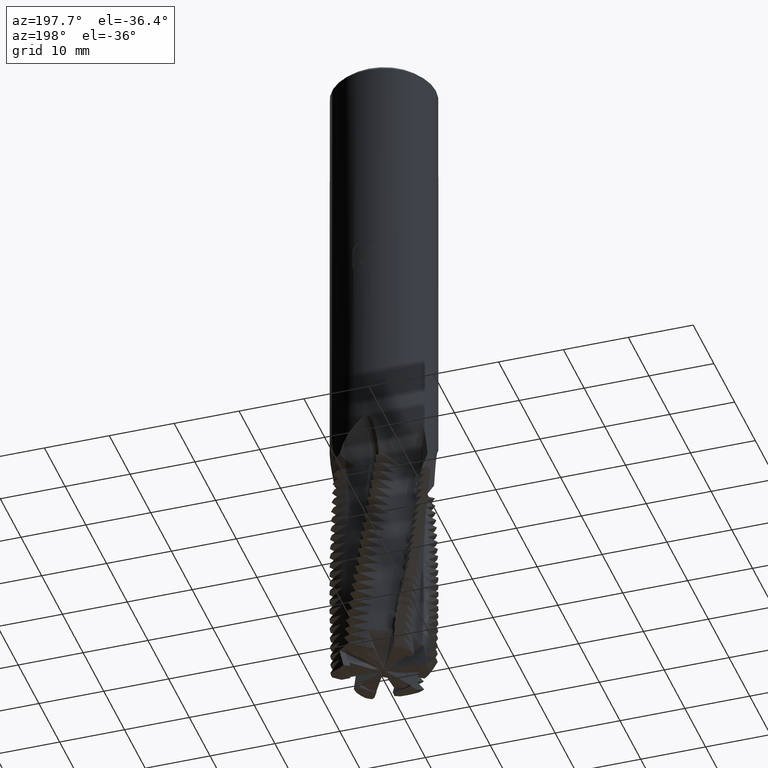
[diagram: clean part render]
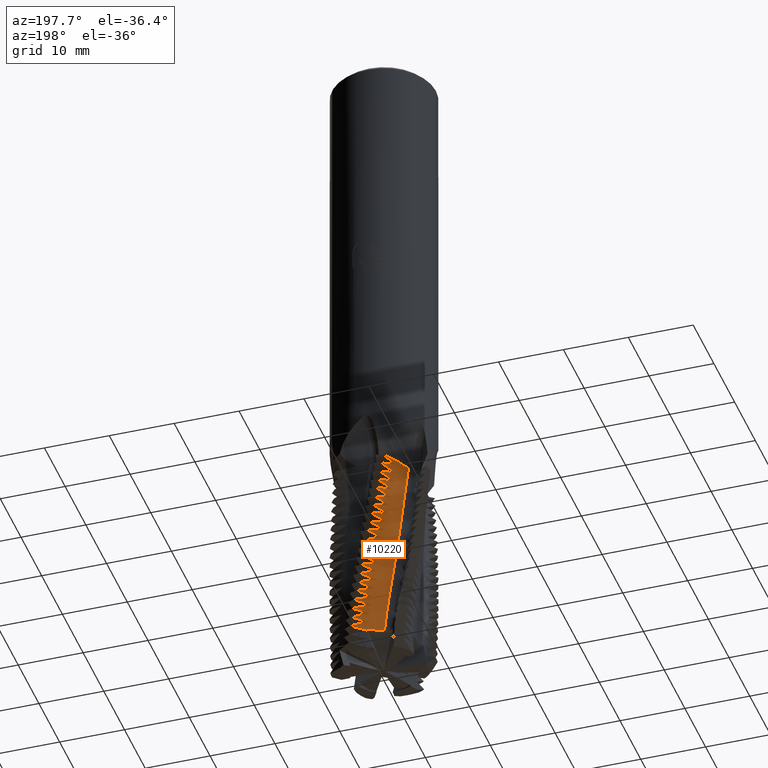
[diagram: same view with one face highlighted and labeled with its STEP entity id]
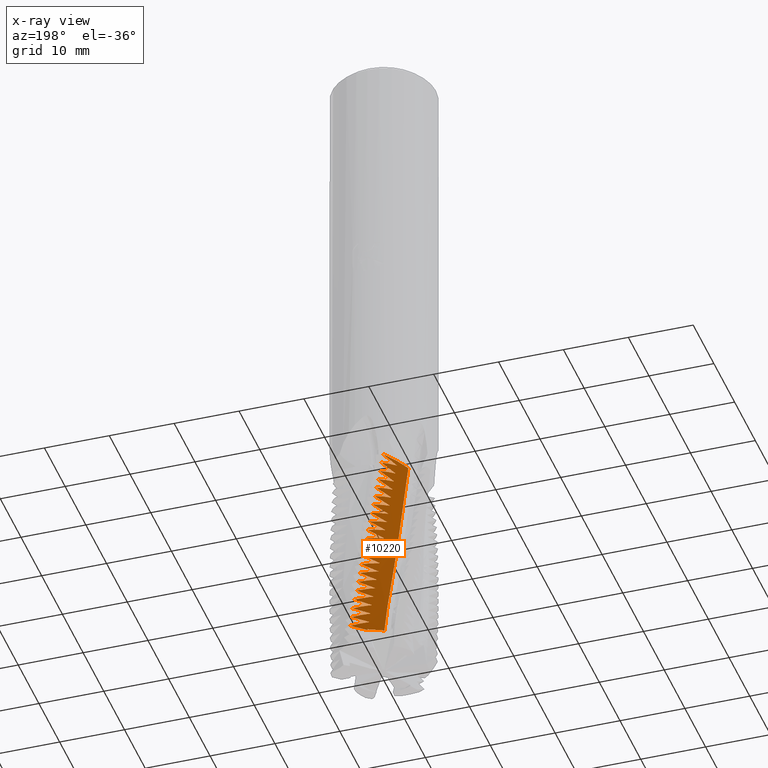
[diagram: x-ray of the same camera — body ghosted, the highlighted face saturated]
A machine part, auxiliary view. The second image highlights one B-rep face of the part: STEP entity #10220.
The next image is the same camera in x-ray: the body ghosted, the highlighted face saturated — about 0% of this face is hidden behind the body in this view.
In plain terms, the highlighted face is a freeform B-spline surface patch.
Its self-contained STEP definition (entity closure, byte-faithful):
#3572=EDGE_CURVE('',#6638,#7048,#10578,.T.);
#3602=EDGE_CURVE('',#5510,#4402,#10611,.T.);
#3728=EDGE_CURVE('',#6560,#4750,#10748,.T.);
#3804=EDGE_CURVE('',#6286,#10432,#10833,.T.);
#3946=VERTEX_POINT('',#10987);
#3958=EDGE_CURVE('',#5080,#10420,#11000,.T.);
#3962=EDGE_CURVE('',#9750,#10074,#11004,.T.);
#4004=EDGE_CURVE('',#7796,#5340,#11047,.T.);
#4064=EDGE_CURVE('',#6792,#9750,#11108,.T.);
#4108=VERTEX_POINT('',#11157);
#4112=EDGE_CURVE('',#4662,#7928,#11162,.T.);
#4120=EDGE_CURVE('',#7064,#10130,#11170,.T.);
#4140=VERTEX_POINT('',#11191);
#4176=VERTEX_POINT('',#11231);
#4188=VERTEX_POINT('',#11245);
#4224=VERTEX_POINT('',#11282);
#4246=VERTEX_POINT('',#11306);
#4322=EDGE_CURVE('',#10122,#9068,#11389,.T.);
#4402=VERTEX_POINT('',#11478);
#4558=EDGE_CURVE('',#5340,#4662,#11650,.T.);
#4658=EDGE_CURVE('',#7964,#4188,#11760,.T.);
#4662=VERTEX_POINT('',#11764);
#4750=VERTEX_POINT('',#11858);
#4760=VERTEX_POINT('',#11869);
#4850=VERTEX_POINT('',#11965);
#4854=EDGE_CURVE('',#6228,#8076,#11969,.T.);
#5054=EDGE_CURVE('',#4760,#7964,#12192,.T.);
#5062=VERTEX_POINT('',#12200);
#5080=VERTEX_POINT('',#12220);
#5138=VERTEX_POINT('',#12281);
#5226=EDGE_CURVE('',#10366,#5080,#12379,.T.);
#5292=VERTEX_POINT('',#12449);
#5310=EDGE_CURVE('',#8076,#6792,#12467,.T.);
#5340=VERTEX_POINT('',#12499);
#5396=EDGE_CURVE('',#4188,#9870,#12563,.T.);
#5510=VERTEX_POINT('',#12683);
#5612=EDGE_CURVE('',#6252,#4760,#12792,.T.);
#5626=VERTEX_POINT('',#12806);
#5632=EDGE_CURVE('',#10432,#6560,#12813,.T.);
#5652=EDGE_CURVE('',#4402,#5062,#12833,.T.);
#5678=EDGE_CURVE('',#10060,#6656,#12861,.T.);
#5686=EDGE_CURVE('',#6336,#10122,#12869,.T.);
#5698=EDGE_CURVE('',#9766,#6252,#12881,.T.);
#5762=EDGE_CURVE('',#8740,#4108,#12949,.T.);
#5902=EDGE_CURVE('',#10074,#7108,#13100,.T.);
#5996=EDGE_CURVE('',#6656,#3946,#13203,.T.);
#6100=VERTEX_POINT('',#13314);
#6142=EDGE_CURVE('',#10420,#4224,#13358,.T.);
#6228=VERTEX_POINT('',#13450);
#6252=VERTEX_POINT('',#13474);
#6286=VERTEX_POINT('',#13513);
#6290=EDGE_CURVE('',#9756,#5626,#13517,.T.);
#6292=EDGE_CURVE('',#4108,#9346,#13519,.T.);
#6336=VERTEX_POINT('',#13566);
#6384=VERTEX_POINT('',#13619);
#6414=EDGE_CURVE('',#9346,#9766,#13651,.T.);
#6434=VERTEX_POINT('',#13674);
#6476=VERTEX_POINT('',#13717);
#6496=VERTEX_POINT('',#13739);
#6516=EDGE_CURVE('',#8780,#6476,#13760,.T.);
#6558=EDGE_CURVE('',#9214,#9756,#13806,.T.);
#6560=VERTEX_POINT('',#13808);
#6638=VERTEX_POINT('',#13891);
#6652=EDGE_CURVE('',#5138,#10060,#13907,.T.);
#6656=VERTEX_POINT('',#13912);
#6682=EDGE_CURVE('',#9068,#8740,#13940,.T.);
#6688=VERTEX_POINT('',#13947);
#6758=EDGE_CURVE('',#5062,#6688,#14020,.T.);
#6792=VERTEX_POINT('',#14054);
#6880=EDGE_CURVE('',#4246,#9792,#14150,.T.);
#7022=EDGE_CURVE('',#4176,#10366,#14304,.T.);
#7048=VERTEX_POINT('',#14334);
#7064=VERTEX_POINT('',#14351);
#7108=VERTEX_POINT('',#14395);
#7136=VERTEX_POINT('',#14426);
#7138=EDGE_CURVE('',#6688,#5292,#14428,.T.);
#7226=VERTEX_POINT('',#14525);
#7358=EDGE_CURVE('',#5510,#7136,#14669,.T.);
#7532=EDGE_CURVE('',#6100,#10326,#14864,.T.);
#7574=EDGE_CURVE('',#9870,#6286,#14912,.T.);
#7640=EDGE_CURVE('',#4850,#6638,#14982,.T.);
#7656=EDGE_CURVE('',#7732,#9214,#14999,.T.);
#7732=VERTEX_POINT('',#15081);
#7796=VERTEX_POINT('',#15151);
#7928=VERTEX_POINT('',#15294);
#7932=EDGE_CURVE('',#7990,#6228,#15298,.T.);
#7934=EDGE_CURVE('',#4140,#7226,#15300,.T.);
#7940=EDGE_CURVE('',#6434,#5138,#15307,.T.);
#7942=EDGE_CURVE('',#10004,#4850,#15309,.T.);
#7964=VERTEX_POINT('',#15334);
#7990=VERTEX_POINT('',#15360);
#8056=EDGE_CURVE('',#6496,#4176,#15434,.T.);
#8076=VERTEX_POINT('',#15455);
#8114=EDGE_CURVE('',#8938,#6434,#15496,.T.);
#8252=EDGE_CURVE('',#7048,#6496,#15648,.T.);
#8270=EDGE_CURVE('',#7928,#7732,#15670,.T.);
#8512=EDGE_CURVE('',#5292,#8780,#15935,.T.);
#8728=EDGE_CURVE('',#10130,#8938,#16168,.T.);
#8734=EDGE_CURVE('',#6476,#10004,#16175,.T.);
#8740=VERTEX_POINT('',#16181);
#8780=VERTEX_POINT('',#16222);
#8844=EDGE_CURVE('',#3946,#6100,#16289,.T.);
#8938=VERTEX_POINT('',#16392);
#9068=VERTEX_POINT('',#16537);
#9214=VERTEX_POINT('',#16700);
#9346=VERTEX_POINT('',#16842);
#9432=EDGE_CURVE('',#10326,#7990,#16937,.T.);
#9460=EDGE_CURVE('',#5626,#4140,#16969,.T.);
#9642=EDGE_CURVE('',#9792,#6336,#17167,.T.);
#9750=VERTEX_POINT('',#17286);
#9756=VERTEX_POINT('',#17292);
#9766=VERTEX_POINT('',#17302);
#9792=VERTEX_POINT('',#17331);
#9870=VERTEX_POINT('',#17416);
#9918=EDGE_CURVE('',#7136,#7226,#17469,.T.);
#10000=EDGE_CURVE('',#10204,#6384,#17558,.T.);
#10004=VERTEX_POINT('',#17563);
#10060=VERTEX_POINT('',#17627);
#10074=VERTEX_POINT('',#17643);
#10122=VERTEX_POINT('',#17696);
#10130=VERTEX_POINT('',#17705);
#10148=EDGE_CURVE('',#4750,#7064,#17723,.T.);
#10158=EDGE_CURVE('',#7108,#7796,#17733,.T.);
#10166=EDGE_CURVE('',#6384,#4246,#17742,.T.);
#10204=VERTEX_POINT('',#17783);
#10214=EDGE_CURVE('',#4224,#10204,#17794,.T.);
#10220=ADVANCED_FACE('',(#17800),#17801,.F.);
#10326=VERTEX_POINT('',#17916);
#10366=VERTEX_POINT('',#17957);
#10420=VERTEX_POINT('',#18015);
#10432=VERTEX_POINT('',#18028);
#10578=B_SPLINE_CURVE_WITH_KNOTS('',3,(#18297,#18298,#18299,#18300,#18301,#18302),.UNSPECIFIED.,.F.,.F.,(4,2,4),(-5.61705254509425,-2.84735436189056,-0.0),.UNSPECIFIED.);
#10611=B_SPLINE_CURVE_WITH_KNOTS('',3,(#18458,#18459,#18460,#18461,#18462,#18463),.UNSPECIFIED.,.F.,.F.,(4,2,4),(-5.3068351961795,-2.64230729135361,-0.0),.UNSPECIFIED.);
#10748=B_SPLINE_CURVE_WITH_KNOTS('',3,(#19052,#19053,#19054,#19055,#19056,#19057),.UNSPECIFIED.,.F.,.F.,(4,2,4),(-5.62560303646634,-2.85306415524994,-0.0),.UNSPECIFIED.);
#10833=B_SPLINE_CURVE_WITH_KNOTS('',3,(#19461,#19462,#19463,#19464,#19465,#19466),.UNSPECIFIED.,.F.,.F.,(4,2,4),(-5.29224975241658,-2.63611369716184,-0.0),.UNSPECIFIED.);
#10987=CARTESIAN_POINT('',(6.2931347719032E-012,6.93667071871941,-94.6964658122784));
#11000=B_SPLINE_CURVE_WITH_KNOTS('',3,(#20113,#20114,#20115,#20116,#20117,#20118),.UNSPECIFIED.,.F.,.F.,(4,2,4),(-5.29919659123654,-2.63980155363889,-0.0),.UNSPECIFIED.);
#11004=B_SPLINE_CURVE_WITH_KNOTS('',3,(#20125,#20126,#20127,#20128,#20129,#20130),.UNSPECIFIED.,.F.,.F.,(4,2,4),(-5.62842690117937,-2.8504616806615,-0.0),.UNSPECIFIED.);
#11047=B_SPLINE_CURVE_WITH_KNOTS('',3,(#20212,#20213,#20214,#20215,#20216,#20217),.UNSPECIFIED.,.F.,.F.,(4,2,4),(-5.30899180641746,-2.64685509436616,-0.0),.UNSPECIFIED.);
#11108=B_SPLINE_CURVE_WITH_KNOTS('',3,(#20347,#20348,#20349,#20350,#20351,#20352),.UNSPECIFIED.,.F.,.F.,(4,2,4),(-5.27796931122873,-2.63493816784428,-0.0),.UNSPECIFIED.);
#11157=CARTESIAN_POINT('',(0.500448520905058,7.98433161121188,-87.7500000000235));
#11162=B_SPLINE_CURVE_WITH_KNOTS('',3,(#20581,#20582,#20583,#20584,#20585,#20586),.UNSPECIFIED.,.F.,.F.,(4,2,4),(-5.59463923909086,-2.8299940062237,-0.0),.UNSPECIFIED.);
#11170=B_SPLINE_CURVE_WITH_KNOTS('',3,(#20596,#20597,#20598,#20599,#20600,#20601),.UNSPECIFIED.,.F.,.F.,(4,2,4),(-5.28481160809971,-2.63325788762491,-0.0),.UNSPECIFIED.);
#11191=CARTESIAN_POINT('',(-1.81806718116305,5.47136106983326,-101.739488676859));
#11231=CARTESIAN_POINT('',(-0.777464885794631,7.96213214857404,-80.25));
#11245=CARTESIAN_POINT('',(-1.39910663453559,6.40830999861701,-90.0));
#11282=CARTESIAN_POINT('',(-0.256729885973499,7.99587954922084,-83.25));
#11306=CARTESIAN_POINT('',(-1.99867690356361,6.24733759679575,-85.5));
#11389=B_SPLINE_CURVE_WITH_KNOTS('',3,(#21339,#21340,#21341,#21342,#21343,#21344),.UNSPECIFIED.,.F.,.F.,(4,2,4),(-5.30512788295011,-2.64202871325211,-0.0),.UNSPECIFIED.);
#11478=CARTESIAN_POINT('',(-3.70118484801584,5.41527165837451,-72.0));
#11650=B_SPLINE_CURVE_WITH_KNOTS('',3,(#22115,#22116,#22117,#22118,#22119,#22120),.UNSPECIFIED.,.F.,.F.,(4,2,4),(-5.59463923909086,-2.8299940062237,-0.0),.UNSPECIFIED.);
#11760=B_SPLINE_CURVE_WITH_KNOTS('',3,(#22672,#22673,#22674,#22675,#22676,#22677),.UNSPECIFIED.,.F.,.F.,(4,2,4),(-5.29931763335782,-2.63884773510756,-0.0),.UNSPECIFIED.);
#11764=CARTESIAN_POINT('',(5.3541380186738E-013,6.56718841678016,-99.0041255001269));
#11858=CARTESIAN_POINT('',(4.45093887233156E-011,7.22277850981862,-91.8454041012309));
#11869=CARTESIAN_POINT('',(0.750139035347912,7.96475306758749,-89.2500000000005));
#11965=CARTESIAN_POINT('',(-1.29985277857954,7.89369259307835,-77.2499999999998));
#11969=B_SPLINE_CURVE_WITH_KNOTS('',3,(#23682,#23683,#23684,#23685,#23686,#23687),.UNSPECIFIED.,.F.,.F.,(4,2,4),(-5.66544623836965,-2.87685789419579,-0.0),.UNSPECIFIED.);
#12192=B_SPLINE_CURVE_WITH_KNOTS('',3,(#24725,#24726,#24727,#24728,#24729,#24730),.UNSPECIFIED.,.F.,.F.,(4,2,4),(-5.29931763335782,-2.63884773510756,-0.0),.UNSPECIFIED.);
#12200=CARTESIAN_POINT('',(-2.04486738893872,7.73424316670059,-72.75));
#12220=CARTESIAN_POINT('',(-0.515594275509708,7.98336786970647,-81.75));
#12281=CARTESIAN_POINT('',(1.56174644119549,7.84607851435447,-93.7499999999997));
#12379=B_SPLINE_CURVE_WITH_KNOTS('',3,(#25391,#25392,#25393,#25394,#25395,#25396),.UNSPECIFIED.,.F.,.F.,(4,2,4),(-5.61695204945826,-2.84675506453651,-0.0),.UNSPECIFIED.);
#12449=CARTESIAN_POINT('',(-1.801726448486,7.79447123317716,-74.25));
#12467=B_SPLINE_CURVE_WITH_KNOTS('',3,(#25769,#25770,#25771,#25772,#25773,#25774),.UNSPECIFIED.,.F.,.F.,(4,2,4),(-5.27796931122873,-2.63493816784428,-0.0),.UNSPECIFIED.);
#12499=CARTESIAN_POINT('',(-0.0168372587859689,6.55924179458974,-99.0));
#12563=B_SPLINE_CURVE_WITH_KNOTS('',3,(#26096,#26097,#26098,#26099,#26100,#26101),.UNSPECIFIED.,.F.,.F.,(4,2,4),(-5.61785217368374,-2.84832788977248,-0.0),.UNSPECIFIED.);
#12683=CARTESIAN_POINT('',(-2.28298410653243,7.66733223298555,-71.2499999996929));
#12792=B_SPLINE_CURVE_WITH_KNOTS('',3,(#26895,#26896,#26897,#26898,#26899,#26900),.UNSPECIFIED.,.F.,.F.,(4,2,4),(-5.61030863050727,-2.84373548605587,-0.0),.UNSPECIFIED.);
#12806=CARTESIAN_POINT('',(0.426589487556683,6.61450612161959,-101.815892716927));
#12813=B_SPLINE_CURVE_WITH_KNOTS('',3,(#26955,#26956,#26957,#26958,#26959,#26960),.UNSPECIFIED.,.F.,.F.,(4,2,4),(-5.29224975241658,-2.63611369716184,-0.0),.UNSPECIFIED.);
#12833=B_SPLINE_CURVE_WITH_KNOTS('',3,(#27067,#27068,#27069,#27070,#27071,#27072),.UNSPECIFIED.,.F.,.F.,(4,2,4),(-5.60724618317943,-2.84136709142913,-0.0),.UNSPECIFIED.);
#12861=B_SPLINE_CURVE_WITH_KNOTS('',3,(#27245,#27246,#27247,#27248,#27249,#27250),.UNSPECIFIED.,.F.,.F.,(4,2,4),(-5.27704748807894,-2.63030225686955,-0.0),.UNSPECIFIED.);
#12869=B_SPLINE_CURVE_WITH_KNOTS('',3,(#27277,#27278,#27279,#27280,#27281,#27282),.UNSPECIFIED.,.F.,.F.,(4,2,4),(-5.30512788295011,-2.64202871325211,-0.0),.UNSPECIFIED.);
#12881=B_SPLINE_CURVE_WITH_KNOTS('',3,(#27322,#27323,#27324,#27325,#27326,#27327),.UNSPECIFIED.,.F.,.F.,(4,2,4),(-5.61030863050727,-2.84373548605587,-0.0),.UNSPECIFIED.);
#12949=B_SPLINE_CURVE_WITH_KNOTS('',3,(#27594,#27595,#27596,#27597,#27598,#27599),.UNSPECIFIED.,.F.,.F.,(4,2,4),(-5.60850588088966,-2.84167495983949,-0.0),.UNSPECIFIED.);
#13100=B_SPLINE_CURVE_WITH_KNOTS('',3,(#28147,#28148,#28149,#28150,#28151,#28152),.UNSPECIFIED.,.F.,.F.,(4,2,4),(-5.62842690117937,-2.8504616806615,-0.0),.UNSPECIFIED.);
#13203=B_SPLINE_CURVE_WITH_KNOTS('',3,(#28541,#28542,#28543,#28544,#28545,#28546),.UNSPECIFIED.,.F.,.F.,(4,2,4),(-5.64159973457972,-2.8628773497595,-0.0),.UNSPECIFIED.);
#13314=CARTESIAN_POINT('',(1.85391366543062,7.78222359747711,-95.25));
#13358=B_SPLINE_CURVE_WITH_KNOTS('',3,(#29026,#29027,#29028,#29029,#29030,#29031),.UNSPECIFIED.,.F.,.F.,(4,2,4),(-5.61461144491687,-2.84535064832046,-0.0),.UNSPECIFIED.);
#13450=CARTESIAN_POINT('',(3.99574574710915E-013,6.79930584036786,-96.1249581827056));
#13474=CARTESIAN_POINT('',(4.76403072926287E-011,7.51999074915987,-89.0001230000526));
#13513=CARTESIAN_POINT('',(1.00991466050992,7.93599851174933,-90.7499999999999));
#13517=B_SPLINE_CURVE_WITH_KNOTS('',3,(#29571,#29572,#29573,#29574),.UNSPECIFIED.,.F.,.F.,(4,4),(-6.48359767396608,-0.0),.UNSPECIFIED.);
#13519=B_SPLINE_CURVE_WITH_KNOTS('',3,(#29577,#29578,#29579,#29580,#29581,#29582),.UNSPECIFIED.,.F.,.F.,(4,2,4),(-5.30680459595176,-2.64143393829738,-0.0),.UNSPECIFIED.);
#13566=CARTESIAN_POINT('',(0.251386731011749,7.99604931897441,-86.25));
#13619=CARTESIAN_POINT('',(-0.00103117504400728,7.99999993354237,-84.75));
#13651=B_SPLINE_CURVE_WITH_KNOTS('',3,(#30099,#30100,#30101,#30102,#30103,#30104),.UNSPECIFIED.,.F.,.F.,(4,2,4),(-5.30680459595176,-2.64143393829738,-0.0),.UNSPECIFIED.);
#13674=CARTESIAN_POINT('',(2.34270636433802E-011,7.07804538146926,-93.2700608034889));
#13717=CARTESIAN_POINT('',(-1.55342486526198,7.84773032165895,-75.7499999975008));
#13739=CARTESIAN_POINT('',(-2.78949386265457,5.93655290580222,-79.5));
#13760=B_SPLINE_CURVE_WITH_KNOTS('',3,(#30451,#30452,#30453,#30454,#30455,#30456),.UNSPECIFIED.,.F.,.F.,(4,2,4),(-5.61188367701197,-2.8441945853918,-0.0),.UNSPECIFIED.);
#13806=B_SPLINE_CURVE_WITH_KNOTS('',3,(#30556,#30557,#30558,#30559,#30560,#30561),.UNSPECIFIED.,.F.,.F.,(4,2,4),(-5.37535980414268,-2.6727734727094,-0.0),.UNSPECIFIED.);
#13808=CARTESIAN_POINT('',(-1.18501839121588,6.45133070192936,-91.5));
#13891=CARTESIAN_POINT('',(-2.98335777583951,5.8415334283486,-78.0));
#13907=B_SPLINE_CURVE_WITH_KNOTS('',3,(#30782,#30783,#30784,#30785,#30786,#30787),.UNSPECIFIED.,.F.,.F.,(4,2,4),(-5.27704748807894,-2.63030225686955,-0.0),.UNSPECIFIED.);
#13912=CARTESIAN_POINT('',(-0.726027042787402,6.51895859369559,-94.5));
#13940=B_SPLINE_CURVE_WITH_KNOTS('',3,(#30947,#30948,#30949,#30950,#30951,#30952),.UNSPECIFIED.,.F.,.F.,(4,2,4),(-5.60850588088966,-2.84167495983949,-0.0),.UNSPECIFIED.);
#13947=CARTESIAN_POINT('',(-3.5301178745553,5.5283093441776,-73.5));
#14020=B_SPLINE_CURVE_WITH_KNOTS('',3,(#31168,#31169,#31170,#31171,#31172,#31173),.UNSPECIFIED.,.F.,.F.,(4,2,4),(-5.30497433645868,-2.64156534911875,-0.0),.UNSPECIFIED.);
#14054=CARTESIAN_POINT('',(-1.08707537791344E-014,6.68117577108672,-97.4365364390416));
#14150=B_SPLINE_CURVE_WITH_KNOTS('',3,(#31567,#31568,#31569,#31570,#31571,#31572),.UNSPECIFIED.,.F.,.F.,(4,2,4),(-5.61037749924852,-2.8428041078255,-0.0),.UNSPECIFIED.);
#14304=B_SPLINE_CURVE_WITH_KNOTS('',3,(#31978,#31979,#31980,#31981,#31982,#31983),.UNSPECIFIED.,.F.,.F.,(4,2,4),(-5.29705058364045,-2.6389864589844,-0.0),.UNSPECIFIED.);
#14334=CARTESIAN_POINT('',(-1.04093356792636,7.93198949239393,-78.7499999999475));
#14351=CARTESIAN_POINT('',(1.28040513451752,7.89687043654025,-92.2499999999996));
#14395=CARTESIAN_POINT('',(2.43306616090384,7.62103595691976,-98.2500000000001));
#14426=CARTESIAN_POINT('',(-2.29083658552717,7.66498974157241,-71.2));
#14428=B_SPLINE_CURVE_WITH_KNOTS('',3,(#32388,#32389,#32390,#32391,#32392,#32393),.UNSPECIFIED.,.F.,.F.,(4,2,4),(-5.60948993759236,-2.84273433571267,-0.0),.UNSPECIFIED.);
#14525=CARTESIAN_POINT('',(-4.78537946160224,3.21986846942251,-71.2));
#14669=B_SPLINE_CURVE_WITH_KNOTS('',3,(#33109,#33110,#33111,#33112,#33113,#33114,#33115,#33116,#33117,#33118,#33119,#33120,#33121,#33122,#33123,#33124,#33125,#33126),.UNSPECIFIED.,.F.,.F.,(4,2,2,2,2,2,2,2,4),(0.0,4.279883130795,7.59079737926424,9.30267604706499,14.1018086830474,16.391757129883,22.042377601428,25.651315467252,28.8942152058828),.UNSPECIFIED.);
#14864=B_SPLINE_CURVE_WITH_KNOTS('',3,(#33762,#33763,#33764,#33765,#33766,#33767),.UNSPECIFIED.,.F.,.F.,(4,2,4),(-5.26902370426041,-2.62727811736878,-0.0),.UNSPECIFIED.);
#14912=B_SPLINE_CURVE_WITH_KNOTS('',3,(#34017,#34018,#34019,#34020,#34021,#34022),.UNSPECIFIED.,.F.,.F.,(4,2,4),(-5.61785217368374,-2.84832788977248,-0.0),.UNSPECIFIED.);
#14982=B_SPLINE_CURVE_WITH_KNOTS('',3,(#34297,#34298,#34299,#34300,#34301,#34302),.UNSPECIFIED.,.F.,.F.,(4,2,4),(-5.29830235856535,-2.63894712286887,-0.0),.UNSPECIFIED.);
#14999=B_SPLINE_CURVE_WITH_KNOTS('',3,(#34327,#34328,#34329,#34330,#34331,#34332),.UNSPECIFIED.,.F.,.F.,(4,2,4),(-5.56306503872615,-2.81067559572574,-0.0),.UNSPECIFIED.);
#15081=CARTESIAN_POINT('',(0.160369273449876,6.557302655003,-100.5));
#15151=CARTESIAN_POINT('',(2.1493831673776E-014,6.5677329966731,-98.9955910095245));
#15294=CARTESIAN_POINT('',(2.65736199013016,7.54575557869512,-99.7500000000006));
#15298=B_SPLINE_CURVE_WITH_KNOTS('',3,(#35187,#35188,#35189,#35190,#35191,#35192),.UNSPECIFIED.,.F.,.F.,(4,2,4),(-5.66544623836965,-2.87685789419579,-0.0),.UNSPECIFIED.);
#15300=B_SPLINE_CURVE_WITH_KNOTS('',3,(#35195,#35196,#35197,#35198,#35199,#35200,#35201,#35202,#35203,#35204,#35205,#35206),.UNSPECIFIED.,.F.,.F.,(4,1,2,1,2,2,4),(0.0,4.26563632946831,8.53127265893663,12.7969089884049,17.0625453178733,25.5938179768099,34.1250906357465),.UNSPECIFIED.);
#15307=B_SPLINE_CURVE_WITH_KNOTS('',3,(#35220,#35221,#35222,#35223,#35224,#35225),.UNSPECIFIED.,.F.,.F.,(4,2,4),(-5.63354067980078,-2.85792669839342,-0.0),.UNSPECIFIED.);
#15309=B_SPLINE_CURVE_WITH_KNOTS('',3,(#35228,#35229,#35230,#35231,#35232,#35233),.UNSPECIFIED.,.F.,.F.,(4,2,4),(-5.61441070878141,-2.84573818096591,-0.0),.UNSPECIFIED.);
#15334=CARTESIAN_POINT('',(1.60785506309413E-011,7.46407065382089,-89.5289871590446));
#15360=CARTESIAN_POINT('',(-0.480515731963107,6.54163901820577,-96.0));
#15434=B_SPLINE_CURVE_WITH_KNOTS('',3,(#35628,#35629,#35630,#35631,#35632,#35633),.UNSPECIFIED.,.F.,.F.,(4,2,4),(-5.61948608757075,-2.84789399822554,-0.0),.UNSPECIFIED.);
#15455=CARTESIAN_POINT('',(2.15647861385182,7.70386915788481,-96.7499999974435));
#15496=B_SPLINE_CURVE_WITH_KNOTS('',3,(#35776,#35777,#35778,#35779,#35780,#35781),.UNSPECIFIED.,.F.,.F.,(4,2,4),(-5.63354067980078,-2.85792669839342,-0.0),.UNSPECIFIED.);
#15648=B_SPLINE_CURVE_WITH_KNOTS('',3,(#36301,#36302,#36303,#36304,#36305,#36306),.UNSPECIFIED.,.F.,.F.,(4,2,4),(-5.29626750212188,-2.63815798791847,-0.0),.UNSPECIFIED.);
#15670=B_SPLINE_CURVE_WITH_KNOTS('',3,(#36353,#36354,#36355,#36356,#36357,#36358),.UNSPECIFIED.,.F.,.F.,(4,2,4),(-5.34181251558765,-2.65962999751092,-0.0),.UNSPECIFIED.);
#15935=B_SPLINE_CURVE_WITH_KNOTS('',3,(#37184,#37185,#37186,#37187,#37188,#37189),.UNSPECIFIED.,.F.,.F.,(4,2,4),(-5.30292477728622,-2.64075479213879,-0.0),.UNSPECIFIED.);
#16168=B_SPLINE_CURVE_WITH_KNOTS('',3,(#37983,#37984,#37985,#37986,#37987,#37988),.UNSPECIFIED.,.F.,.F.,(4,2,4),(-5.28481160809971,-2.63325788762491,-0.0),.UNSPECIFIED.);
#16175=B_SPLINE_CURVE_WITH_KNOTS('',3,(#38008,#38009,#38010,#38011,#38012,#38013),.UNSPECIFIED.,.F.,.F.,(4,2,4),(-5.30069670768169,-2.63988023384889,-0.0),.UNSPECIFIED.);
#16181=CARTESIAN_POINT('',(2.74064407042736E-011,7.67195249505207,-87.5792292779084));
#16222=CARTESIAN_POINT('',(-3.35354826069182,5.63716688385106,-75.0));
#16289=B_SPLINE_CURVE_WITH_KNOTS('',3,(#38442,#38443,#38444,#38445,#38446,#38447),.UNSPECIFIED.,.F.,.F.,(4,2,4),(-5.64159973457972,-2.8628773497595,-0.0),.UNSPECIFIED.);
#16392=CARTESIAN_POINT('',(-0.960775157152152,6.48851658783235,-93.0));
#16537=CARTESIAN_POINT('',(-1.8010593044373,6.30714846781619,-87.0));
#16700=CARTESIAN_POINT('',(2.83037566567393,7.48257800434856,-101.25));
#16842=CARTESIAN_POINT('',(1.22879948360133E-011,7.63274681843867,-87.9411799055311));
#16937=B_SPLINE_CURVE_WITH_KNOTS('',3,(#40822,#40823,#40824,#40825,#40826,#40827),.UNSPECIFIED.,.F.,.F.,(4,2,4),(-5.26902370426041,-2.62727811736878,-0.0),.UNSPECIFIED.);
#16969=B_SPLINE_CURVE_WITH_KNOTS('',3,(#40942,#40943,#40944,#40945),.UNSPECIFIED.,.F.,.F.,(4,4),(-3.50303263179266,-0.0),.UNSPECIFIED.);
#17167=B_SPLINE_CURVE_WITH_KNOTS('',3,(#41652,#41653,#41654,#41655,#41656,#41657),.UNSPECIFIED.,.F.,.F.,(4,2,4),(-5.61037749924852,-2.8428041078255,-0.0),.UNSPECIFIED.);
#17286=CARTESIAN_POINT('',(-0.232129724090042,6.55515462856294,-97.5));
#17292=CARTESIAN_POINT('',(0.386156176119623,6.59076272056253,-101.977718601492));
#17302=CARTESIAN_POINT('',(-1.60345399356471,6.3602572042094,-88.5));
#17331=CARTESIAN_POINT('',(7.98372990194322E-012,7.83151659306949,-86.1622930897873));
#17416=CARTESIAN_POINT('',(5.52901894377139E-011,7.3702734419548,-90.4221851030243));
#17469=B_SPLINE_CURVE_WITH_KNOTS('',3,(#42713,#42714,#42715,#42716),.UNSPECIFIED.,.F.,.F.,(4,4),(0.0,5.61322775074265),.UNSPECIFIED.);
#17558=B_SPLINE_CURVE_WITH_KNOTS('',3,(#43012,#43013,#43014,#43015,#43016,#43017),.UNSPECIFIED.,.F.,.F.,(4,2,4),(-5.61241594916992,-2.84403129280244,-0.0),.UNSPECIFIED.);
#17563=CARTESIAN_POINT('',(-3.17133779702817,5.74165071998609,-76.5));
#17627=CARTESIAN_POINT('',(2.30737806527362E-012,6.97730903925858,-94.2823792170591));
#17643=CARTESIAN_POINT('',(8.25091362019779E-015,6.67125563371079,-97.5582994643035));
#17696=CARTESIAN_POINT('',(3.30750836971761E-012,7.80992750516497,-86.3489454780273));
#17705=CARTESIAN_POINT('',(8.06780613808847E-012,7.1355716541482,-92.6999929144134));
#17723=B_SPLINE_CURVE_WITH_KNOTS('',3,(#43700,#43701,#43702,#43703,#43704,#43705),.UNSPECIFIED.,.F.,.F.,(4,2,4),(-5.62560303646634,-2.85306415524994,-0.0),.UNSPECIFIED.);
#17733=B_SPLINE_CURVE_WITH_KNOTS('',3,(#43731,#43732,#43733,#43734,#43735,#43736),.UNSPECIFIED.,.F.,.F.,(4,2,4),(-5.30899180641746,-2.64685509436616,-0.0),.UNSPECIFIED.);
#17742=B_SPLINE_CURVE_WITH_KNOTS('',3,(#43746,#43747,#43748,#43749,#43750,#43751),.UNSPECIFIED.,.F.,.F.,(4,2,4),(-5.30324811811764,-2.64132731899618,-0.0),.UNSPECIFIED.);
#17783=CARTESIAN_POINT('',(-2.19651209236396,6.18055588448767,-84.0));
#17794=B_SPLINE_CURVE_WITH_KNOTS('',3,(#44003,#44004,#44005,#44006,#44007,#44008),.UNSPECIFIED.,.F.,.F.,(4,2,4),(-5.3012669911425,-2.64058348757497,-0.0),.UNSPECIFIED.);
#17800=FACE_OUTER_BOUND('',#44022,.T.);
#17801=B_SPLINE_SURFACE_WITH_KNOTS('',3,3,((#44023,#44024,#44025,#44026,#44027,#44028,#44029,#44030,#44031,#44032,#44033,#44034),(#44035,#44036,#44037,#44038,#44039,#44040,#44041,#44042,#44043,#44044,#44045,#44046),(#44047,#44048,#44049,#44050,#44051,#44052,#44053,#44054,#44055,#44056,#44057,#44058),(#44059,#44060,#44061,#44062,#44063,#44064,#44065,#44066,#44067,#44068,#44069,#44070),(#44071,#44072,#44073,#44074,#44075,#44076,#44077,#44078,#44079,#44080,#44081,#44082)),.UNSPECIFIED.,.F.,.F.,.F.,(4,1,4),(4,1,2,1,2,2,4),(1.2067197059184E-017,0.174488720353414,0.348977440706829),(0.0,4.26563632946831,8.53127265893663,12.7969089884049,17.0625453178733,25.5938179768099,34.1250906357465),.UNSPECIFIED.);
#17916=CARTESIAN_POINT('',(1.68982116924261E-013,6.82423721693295,-95.8620633641297));
#17957=CARTESIAN_POINT('',(-2.59213735434415,6.02534317274875,-81.0));
#18015=CARTESIAN_POINT('',(-2.39439810143387,6.10661887995527,-82.5));
#18028=CARTESIAN_POINT('',(1.44877057180295E-011,7.29810780238834,-91.115381951116));
#18297=CARTESIAN_POINT('',(-4.30885464508294,3.8308623440259,-77.5868265313555));
#18298=CARTESIAN_POINT('',(-3.86200965776444,4.63051717022672,-77.6895733769708));
#18299=CARTESIAN_POINT('',(-3.35530907049115,5.3835729749387,-77.8611815923217));
#18300=CARTESIAN_POINT('',(-2.21536587180809,6.80172070310691,-78.2844368110539));
#18301=CARTESIAN_POINT('',(-1.57911621900477,7.46373121060518,-78.5377550049562));
#18302=CARTESIAN_POINT('',(-0.893778037265659,8.0621258885914,-78.8080522356429));
#18458=CARTESIAN_POINT('',(-2.17726360146292,7.8140375570741,-71.1918532109574));
#18459=CARTESIAN_POINT('',(-2.672890610624,7.13195642819419,-71.4646410411621));
#18460=CARTESIAN_POINT('',(-3.13882074415008,6.41117930617835,-71.7194886768025));
#18461=CARTESIAN_POINT('',(-3.98236655577562,4.92287033474499,-72.1415272696656));
#18462=CARTESIAN_POINT('',(-4.36695287378708,4.14554073925345,-72.3116930785606));
#18463=CARTESIAN_POINT('',(-4.70298064134421,3.33764898331061,-72.4124425328916));
#19052=CARTESIAN_POINT('',(-3.03274887389167,4.90237092452676,-91.0863331409869));
#19053=CARTESIAN_POINT('',(-2.37534151868003,5.54154851329591,-91.1892555208959));
#19054=CARTESIAN_POINT('',(-1.67361293120473,6.11872495605681,-91.3610646008751));
#19055=CARTESIAN_POINT('',(-0.172433266103754,7.15184979762354,-91.7845965631493));
#19056=CARTESIAN_POINT('',(0.629032343839766,7.60375486214255,-92.0380299844949));
#19057=CARTESIAN_POINT('',(1.45988216137509,7.97941549835248,-92.3082323937914));
#19461=CARTESIAN_POINT('',(1.16485032834655,8.02760893312088,-90.6918621397113));
#19462=CARTESIAN_POINT('',(0.44030620892292,7.60294898532091,-90.9647976701057));
#19463=CARTESIAN_POINT('',(-0.273837215802295,7.13171570996939,-91.2199896113534));
#19464=CARTESIAN_POINT('',(-1.64175448855707,6.11353725400631,-91.6423052557006));
#19465=CARTESIAN_POINT('',(-2.30661879266432,5.55980714850825,-91.8125750038272));
#19466=CARTESIAN_POINT('',(-2.94008312278182,4.95923138876308,-91.9133391497003));
#20113=CARTESIAN_POINT('',(-0.38063365108625,8.10264689397866,-81.6919138909195));
#20114=CARTESIAN_POINT('',(-1.01303180989768,7.54803383415694,-81.9648612581));
#20115=CARTESIAN_POINT('',(-1.62617573770447,6.94986296840336,-82.2197647237402));
#20116=CARTESIAN_POINT('',(-2.77849868584171,5.68897696065466,-82.6418452863659));
#20117=CARTESIAN_POINT('',(-3.32663990300859,5.01814047761423,-82.8119583225526));
#20118=CARTESIAN_POINT('',(-3.8346463991523,4.30675587010099,-82.9126803289837));
#20125=CARTESIAN_POINT('',(-2.28254188528173,5.30521790600813,-97.0919505651534));
#20126=CARTESIAN_POINT('',(-1.53558796460332,5.84006451224126,-97.1940307645648));
#20127=CARTESIAN_POINT('',(-0.754298691880595,6.30558058510464,-97.3645528691186));
#20128=CARTESIAN_POINT('',(0.887151690489005,7.10163374231277,-97.7860623751918));
#20129=CARTESIAN_POINT('',(1.74656642534334,7.42738443907561,-98.0382044909581));
#20130=CARTESIAN_POINT('',(2.62288575043103,7.67621436946999,-98.3082795317399));
#20212=CARTESIAN_POINT('',(2.60337728752843,7.68291718435853,-98.1916886047388));
#20213=CARTESIAN_POINT('',(1.81050141729795,7.39816483171396,-98.4645419655933));
#20214=CARTESIAN_POINT('',(1.01952663700243,7.06744365970083,-98.7183430378674));
#20215=CARTESIAN_POINT('',(-0.51975021048726,6.31586839957771,-99.1389628016104));
#20216=CARTESIAN_POINT('',(-1.27706596858525,5.89163243050851,-99.3080649978421));
#20217=CARTESIAN_POINT('',(-2.01178847895605,5.41351553001259,-99.4081346682965));
#20347=CARTESIAN_POINT('',(2.32276024376592,7.77264265147943,-96.6915474544157));
#20348=CARTESIAN_POINT('',(1.55004038036374,7.45614522829757,-96.964582959316));
#20349=CARTESIAN_POINT('',(0.778297996858196,7.09678869951836,-97.2186080322218));
#20350=CARTESIAN_POINT('',(-0.723017859264654,6.29512444953761,-97.6390167563312));
#20351=CARTESIAN_POINT('',(-1.46245642556937,5.84835094585501,-97.8077847694197));
#20352=CARTESIAN_POINT('',(-2.17867701339143,5.3498362762831,-97.9075065449172));
#20581=CARTESIAN_POINT('',(-2.09852204271423,5.38172630769715,-98.5924660184109));
#20582=CARTESIAN_POINT('',(-1.33701232042621,5.88820486081525,-98.6940925252964));
#20583=CARTESIAN_POINT('',(-0.544359586440129,6.3259589954427,-98.8642688910189));
#20584=CARTESIAN_POINT('',(1.10951218005449,7.06815266873438,-99.2853885219103));
#20585=CARTESIAN_POINT('',(1.97090339294209,7.36885428195484,-99.5375762759087));
#20586=CARTESIAN_POINT('',(2.84568969938421,7.59580863530459,-99.8079734798872));
#20596=CARTESIAN_POINT('',(1.43823205767875,7.98335238221282,-92.1917644267356));
#20597=CARTESIAN_POINT('',(0.701751133021631,7.58340890010975,-92.4646378606657));
#20598=CARTESIAN_POINT('',(-0.026624392830333,7.13717325603347,-92.719772065231));
#20599=CARTESIAN_POINT('',(-1.42667071487541,6.16817464600607,-93.1417811221282));
#20600=CARTESIAN_POINT('',(-2.10985648792802,5.63881496532458,-93.3118217564637));
#20601=CARTESIAN_POINT('',(-2.76362680103015,5.06181838973245,-93.412365316891));
#21339=CARTESIAN_POINT('',(0.397379567056968,8.10175177281829,-86.1919612643326));
#21340=CARTESIAN_POINT('',(-0.286995867419188,7.61029159826782,-86.46494528293));
#21341=CARTESIAN_POINT('',(-0.95574594692969,7.07316561533553,-86.7199041900101));
#21342=CARTESIAN_POINT('',(-2.22479412959713,5.92677804165711,-87.1422321900514));
#21343=CARTESIAN_POINT('',(-2.83467885067479,5.31045206822337,-87.3125306081259));
#21344=CARTESIAN_POINT('',(-3.40818633267744,4.6497709173075,-87.4134276876189));
#22115=CARTESIAN_POINT('',(-2.09852204271423,5.38172630769715,-98.5924660184109));
#22116=CARTESIAN_POINT('',(-1.33701232042621,5.88820486081525,-98.6940925252964));
#22117=CARTESIAN_POINT('',(-0.544359586440129,6.3259589954427,-98.8642688910189));
#22118=CARTESIAN_POINT('',(1.10951218005449,7.06815266873438,-99.2853885219103));
#22119=CARTESIAN_POINT('',(1.97090339294209,7.36885428195484,-99.5375762759087));
#22120=CARTESIAN_POINT('',(2.84568969938421,7.59580863530459,-99.8079734798872));
#22672=CARTESIAN_POINT('',(0.902273288292729,8.06121854356444,-89.1919275979548));
#22673=CARTESIAN_POINT('',(0.189850774388508,7.61337237297871,-89.4648671163429));
#22674=CARTESIAN_POINT('',(-0.509970936771686,7.11877656885387,-89.720050875998));
#22675=CARTESIAN_POINT('',(-1.8457575131008,6.05477849331053,-90.1425204318939));
#22676=CARTESIAN_POINT('',(-2.49238658030942,5.47845139476813,-90.3129244331032));
#22677=CARTESIAN_POINT('',(-3.10574907078202,4.85609313147213,-90.4138243811145));
#23682=CARTESIAN_POINT('',(-2.48665889813048,5.20833692209874,-95.5899178485407));
#23683=CARTESIAN_POINT('',(-1.76065913771242,5.77328725842004,-95.6924832543226));
#23684=CARTESIAN_POINT('',(-0.996783693698674,6.27051218840033,-95.8637893269202));
#23685=CARTESIAN_POINT('',(0.619945047366289,7.13127390498471,-96.2864108783779));
#23686=CARTESIAN_POINT('',(1.46953120501021,7.48751445538085,-96.5378720363124));
#23687=CARTESIAN_POINT('',(2.34653107024711,7.76546541629477,-96.808435612885));
#24725=CARTESIAN_POINT('',(0.902273288292729,8.06121854356444,-89.1919275979548));
#24726=CARTESIAN_POINT('',(0.189850774388508,7.61337237297871,-89.4648671163429));
#24727=CARTESIAN_POINT('',(-0.509970936771686,7.11877656885387,-89.720050875998));
#24728=CARTESIAN_POINT('',(-1.8457575131008,6.05477849331053,-90.1425204318939));
#24729=CARTESIAN_POINT('',(-2.49238658030942,5.47845139476813,-90.3129244331032));
#24730=CARTESIAN_POINT('',(-3.10574907078202,4.85609313147213,-90.4138243811145));
#25391=CARTESIAN_POINT('',(-4.04729892419223,4.10728977147398,-80.5872203098981));
#25392=CARTESIAN_POINT('',(-3.54848041217543,4.87578757649723,-80.6899173930947));
#25393=CARTESIAN_POINT('',(-2.99299895362094,5.59368044691385,-80.8614268048925));
#25394=CARTESIAN_POINT('',(-1.76163408063308,6.93330339008075,-81.2845426701392));
#25395=CARTESIAN_POINT('',(-1.08315999408179,7.55163685582695,-81.5377558844545));
#25396=CARTESIAN_POINT('',(-0.360163550424914,8.10358234766113,-81.8080859802007));
#25769=CARTESIAN_POINT('',(2.32276024376592,7.77264265147943,-96.6915474544157));
#25770=CARTESIAN_POINT('',(1.55004038036374,7.45614522829757,-96.964582959316));
#25771=CARTESIAN_POINT('',(0.778297996858196,7.09678869951836,-97.2186080322218));
#25772=CARTESIAN_POINT('',(-0.723017859264654,6.29512444953761,-97.6390167563312));
#25773=CARTESIAN_POINT('',(-1.46245642556937,5.84835094585501,-97.8077847694197));
#25774=CARTESIAN_POINT('',(-2.17867701339143,5.3498362762831,-97.9075065449172));
#26096=CARTESIAN_POINT('',(-3.1927963476327,4.79916788024715,-89.5861143469587));
#26097=CARTESIAN_POINT('',(-2.55759737757186,5.45910913853355,-89.6889876725608));
#26098=CARTESIAN_POINT('',(-1.87630476626777,6.05890111406071,-89.8607762985001));
#26099=CARTESIAN_POINT('',(-0.413536925649425,7.14123305865097,-90.2843195266405));
#26100=CARTESIAN_POINT('',(0.370280781993634,7.62009963523509,-90.5378093520257));
#26101=CARTESIAN_POINT('',(1.18562123403544,8.02455784551874,-90.8081328821071));
#26895=CARTESIAN_POINT('',(-3.34300945625367,4.69636749690741,-88.086368064751));
#26896=CARTESIAN_POINT('',(-2.72954432593716,5.37533831221068,-88.1891215117881));
#26897=CARTESIAN_POINT('',(-2.06837834056257,5.99596270395861,-88.3608076766119));
#26898=CARTESIAN_POINT('',(-0.643657811338303,7.12378194357059,-88.7842093549207));
#26899=CARTESIAN_POINT('',(0.122522339554578,7.62766356365052,-89.037681625006));
#26900=CARTESIAN_POINT('',(0.922169741821132,8.05893807473478,-89.3080575912065));
#26955=CARTESIAN_POINT('',(1.16485032834655,8.02760893312088,-90.6918621397113));
#26956=CARTESIAN_POINT('',(0.44030620892292,7.60294898532091,-90.9647976701057));
#26957=CARTESIAN_POINT('',(-0.273837215802295,7.13171570996939,-91.2199896113534));
#26958=CARTESIAN_POINT('',(-1.64175448855707,6.11353725400631,-91.6423052557006));
#26959=CARTESIAN_POINT('',(-2.30661879266432,5.55980714850825,-91.8125750038272));
#26960=CARTESIAN_POINT('',(-2.94008312278182,4.95923138876308,-91.9133391497003));
#27067=CARTESIAN_POINT('',(-4.75941353033674,3.25762879071227,-71.587838854219));
#27068=CARTESIAN_POINT('',(-4.41726233650707,4.10610767088295,-71.690335586023));
#27069=CARTESIAN_POINT('',(-4.01032600911006,4.91616446486782,-71.8617015311263));
#27070=CARTESIAN_POINT('',(-3.06184557419545,6.46506007305794,-72.2845794788403));
#27071=CARTESIAN_POINT('',(-2.51686565080617,7.20161993557693,-72.5377828547923));
#27072=CARTESIAN_POINT('',(-1.9159994348491,7.88202043733725,-72.808071070877));
#27245=CARTESIAN_POINT('',(1.72247462596147,7.92709205781465,-93.6916591636205));
#27246=CARTESIAN_POINT('',(0.974330595212148,7.55348042226351,-93.9644098185725));
#27247=CARTESIAN_POINT('',(0.231908021456978,7.1339729743957,-94.2194168791036));
#27248=CARTESIAN_POINT('',(-1.20007214826382,6.21771340811902,-94.6409593642519));
#27249=CARTESIAN_POINT('',(-1.90155994088354,5.71460659726208,-94.8106705740948));
#27250=CARTESIAN_POINT('',(-2.57573826683335,5.1631012832686,-94.9109032055086));
#27277=CARTESIAN_POINT('',(0.397379567056968,8.10175177281829,-86.1919612643326));
#27278=CARTESIAN_POINT('',(-0.286995867419188,7.61029159826782,-86.46494528293));
#27279=CARTESIAN_POINT('',(-0.95574594692969,7.07316561533553,-86.7199041900101));
#27280=CARTESIAN_POINT('',(-2.22479412959713,5.92677804165711,-87.1422321900514));
#27281=CARTESIAN_POINT('',(-2.83467885067479,5.31045206822337,-87.3125306081259));
#27282=CARTESIAN_POINT('',(-3.40818633267744,4.6497709173075,-87.4134276876189));
#27322=CARTESIAN_POINT('',(-3.34300945625367,4.69636749690741,-88.086368064751));
#27323=CARTESIAN_POINT('',(-2.72954432593716,5.37533831221068,-88.1891215117881));
#27324=CARTESIAN_POINT('',(-2.06837834056257,5.99596270395861,-88.3608076766119));
#27325=CARTESIAN_POINT('',(-0.643657811338303,7.12378194357059,-88.7842093549207));
#27326=CARTESIAN_POINT('',(0.122522339554578,7.62766356365052,-89.037681625006));
#27327=CARTESIAN_POINT('',(0.922169741821132,8.05893807473478,-89.3080575912065));
#27594=CARTESIAN_POINT('',(-3.48778662822472,4.59089692965573,-86.5867929225059));
#27595=CARTESIAN_POINT('',(-2.89554388805715,5.28854996789825,-86.6894740515901));
#27596=CARTESIAN_POINT('',(-2.25387557555865,5.92916007702863,-86.8610088839938));
#27597=CARTESIAN_POINT('',(-0.865106626489211,7.10025326249958,-87.284218974758));
#27598=CARTESIAN_POINT('',(-0.115638698920337,7.62739456124388,-87.5375385370138));
#27599=CARTESIAN_POINT('',(0.669062016609029,8.08381509618763,-87.8080200661312));
#28147=CARTESIAN_POINT('',(-2.28254188528173,5.30521790600813,-97.0919505651534));
#28148=CARTESIAN_POINT('',(-1.53558796460332,5.84006451224126,-97.1940307645648));
#28149=CARTESIAN_POINT('',(-0.754298691880595,6.30558058510464,-97.3645528691186));
#28150=CARTESIAN_POINT('',(0.887151690489005,7.10163374231277,-97.7860623751918));
#28151=CARTESIAN_POINT('',(1.74656642534334,7.42738443907561,-98.0382044909581));
#28152=CARTESIAN_POINT('',(2.62288575043103,7.67621436946999,-98.3082795317399));
#28541=CARTESIAN_POINT('',(-2.68034486215232,5.107706934852,-94.0882339901732));
#28542=CARTESIAN_POINT('',(-1.97742142842493,5.69954112111652,-94.1910103697075));
#28543=CARTESIAN_POINT('',(-1.23426892220369,6.2255722088627,-94.362585224873));
#28544=CARTESIAN_POINT('',(0.343912670704889,7.14801837452095,-94.7855925187923));
#28545=CARTESIAN_POINT('',(1.18015306215915,7.53964220815627,-95.0386743896663));
#28546=CARTESIAN_POINT('',(2.04083653111834,7.85131014986601,-95.3084171195865));
#29026=CARTESIAN_POINT('',(-3.91080035809511,4.23773855486423,-82.0873254652164));
#29027=CARTESIAN_POINT('',(-3.38724246636239,4.98924795014061,-82.1899823359183));
#29028=CARTESIAN_POINT('',(-2.8088040893415,5.68841971995674,-82.361458390632));
#29029=CARTESIAN_POINT('',(-1.53520674150496,6.98684144092075,-82.7845270592159));
#29030=CARTESIAN_POINT('',(-0.83752090324651,7.58270979014246,-83.0377350344828));
#29031=CARTESIAN_POINT('',(-0.0976509947979351,8.11097649779031,-83.3080767008908));
#29571=CARTESIAN_POINT('',(-0.371262441986251,6.17231928570827,-105.003018357368));
#29572=CARTESIAN_POINT('',(0.158376730391804,6.45549701794535,-102.889708240664));
#29573=CARTESIAN_POINT('',(0.701444072083907,6.75010633078117,-100.721831772756));
#29574=CARTESIAN_POINT('',(1.21251041294433,7.13312853891589,-98.657155703256));
#29577=CARTESIAN_POINT('',(0.649767397665758,8.08544751730061,-87.691949490613));
#29578=CARTESIAN_POINT('',(-0.0497433081368012,7.61572658963702,-87.9648543249286));
#29579=CARTESIAN_POINT('',(-0.735183287638151,7.09957346957243,-88.2198800298969));
#29580=CARTESIAN_POINT('',(-2.03919507992709,5.99273660421118,-88.6424240398786));
#29581=CARTESIAN_POINT('',(-2.6677571571113,5.39547414045308,-88.8128726548163));
#29582=CARTESIAN_POINT('',(-3.26129979982428,4.7530129684253,-88.9138293087993));
#30099=CARTESIAN_POINT('',(0.649767397665758,8.08544751730061,-87.691949490613));
#30100=CARTESIAN_POINT('',(-0.0497433081368012,7.61572658963702,-87.9648543249286));
#30101=CARTESIAN_POINT('',(-0.735183287638151,7.09957346957243,-88.2198800298969));
#30102=CARTESIAN_POINT('',(-2.03919507992709,5.99273660421118,-88.6424240398786));
#30103=CARTESIAN_POINT('',(-2.6677571571113,5.39547414045308,-88.8128726548163));
#30104=CARTESIAN_POINT('',(-3.26129979982428,4.7530129684253,-88.9138293087993));
#30451=CARTESIAN_POINT('',(-4.54595228792012,3.54689009608368,-74.5870241181005));
#30452=CARTESIAN_POINT('',(-4.15154896372198,4.37298173974377,-74.6896865668416));
#30453=CARTESIAN_POINT('',(-3.69466201337938,5.15656708746897,-74.8612222147548));
#30454=CARTESIAN_POINT('',(-2.65004158802816,6.64418124895444,-75.2843794598457));
#30455=CARTESIAN_POINT('',(-2.05905655170175,7.34554659238182,-75.5376854569072));
#30456=CARTESIAN_POINT('',(-1.4154174717061,7.98700947513728,-75.8080205950673));
#30556=CARTESIAN_POINT('',(3.00825914111152,7.53438630050144,-101.191309676897));
#30557=CARTESIAN_POINT('',(2.18374279735462,7.29811133051332,-101.464694363803));
#30558=CARTESIAN_POINT('',(1.36292341330821,7.00904792528451,-101.719257369287));
#30559=CARTESIAN_POINT('',(-0.233622949336608,6.32693069376146,-102.142699342122));
#30560=CARTESIAN_POINT('',(-1.01653963370667,5.93236400161773,-102.313720780842));
#30561=CARTESIAN_POINT('',(-1.77724619419138,5.47993178902968,-102.415588687168));
#30782=CARTESIAN_POINT('',(1.72247462596147,7.92709205781465,-93.6916591636205));
#30783=CARTESIAN_POINT('',(0.974330595212148,7.55348042226351,-93.9644098185725));
#30784=CARTESIAN_POINT('',(0.231908021456978,7.1339729743957,-94.2194168791036));
#30785=CARTESIAN_POINT('',(-1.20007214826382,6.21771340811902,-94.6409593642519));
#30786=CARTESIAN_POINT('',(-1.90155994088354,5.71460659726208,-94.8106705740948));
#30787=CARTESIAN_POINT('',(-2.57573826683335,5.1631012832686,-94.9109032055086));
#30947=CARTESIAN_POINT('',(-3.48778662822472,4.59089692965573,-86.5867929225059));
#30948=CARTESIAN_POINT('',(-2.89554388805715,5.28854996789825,-86.6894740515901));
#30949=CARTESIAN_POINT('',(-2.25387557555865,5.92916007702863,-86.8610088839938));
#30950=CARTESIAN_POINT('',(-0.865106626489211,7.10025326249958,-87.284218974758));
#30951=CARTESIAN_POINT('',(-0.115638698920337,7.62739456124388,-87.5375385370138));
#30952=CARTESIAN_POINT('',(0.669062016609029,8.08381509618763,-87.8080200661312));
#31168=CARTESIAN_POINT('',(-1.93496766576958,7.87739366088384,-72.6919247337102));
#31169=CARTESIAN_POINT('',(-2.45074678004804,7.21098849221486,-72.9647700032123));
#31170=CARTESIAN_POINT('',(-2.938244918467,6.50506519489869,-73.219689942493));
#31171=CARTESIAN_POINT('',(-3.82675897698294,5.04398033274521,-73.6418366169877));
#31172=CARTESIAN_POINT('',(-4.23508804721884,4.27914292619079,-73.8120545394094));
#31173=CARTESIAN_POINT('',(-4.59593174904751,3.48230423348902,-73.9128440779098));
#31567=CARTESIAN_POINT('',(-3.63080865611892,4.47940376949568,-85.0871016733928));
#31568=CARTESIAN_POINT('',(-3.0605591818831,5.19545091840794,-85.1897506354765));
#31569=CARTESIAN_POINT('',(-2.43905097305125,5.85594480451574,-85.3612398674006));
#31570=CARTESIAN_POINT('',(-1.08680762689152,7.07003588484508,-85.7843568886174));
#31571=CARTESIAN_POINT('',(-0.353656509918797,7.62027983511319,-86.0376188969666));
#31572=CARTESIAN_POINT('',(0.417031624033657,8.10076096132135,-86.308037170378));
#31978=CARTESIAN_POINT('',(-0.646671855828239,8.08574756675453,-80.1919225694964));
#31979=CARTESIAN_POINT('',(-1.25980759636838,7.51066908957801,-80.4648910341953));
#31980=CARTESIAN_POINT('',(-1.85251350476221,6.89282599839328,-80.7198167299595));
#31981=CARTESIAN_POINT('',(-2.96226861653535,5.59532487027675,-81.1418981172061));
#31982=CARTESIAN_POINT('',(-3.48805039506695,4.90718077559246,-81.3119969808973));
#31983=CARTESIAN_POINT('',(-3.97250281320988,4.17987777462281,-81.4127030023034));
#32388=CARTESIAN_POINT('',(-4.65553312068292,3.40287182111001,-73.087358765682));
#32389=CARTESIAN_POINT('',(-4.28728396255786,4.24064037037994,-73.1899470535954));
#32390=CARTESIAN_POINT('',(-3.85536215366043,5.03794631983801,-73.361408527849));
#32391=CARTESIAN_POINT('',(-2.85872894631612,6.55717898214162,-73.7844463066015));
#32392=CARTESIAN_POINT('',(-2.29066695716383,7.27663922508568,-74.0377112701961));
#32393=CARTESIAN_POINT('',(-1.66829638370813,7.93806605380081,-74.3080327412491));
#33109=CARTESIAN_POINT('',(3.04694187991072,7.39703624301287,-105.001036979725));
#33110=CARTESIAN_POINT('',(3.0217507988442,7.40741279889014,-103.574669439356));
#33111=CARTESIAN_POINT('',(2.93271785788751,7.44491600438347,-102.153793974376));
#33112=CARTESIAN_POINT('',(2.65634398640117,7.54720868928082,-99.6408989315174));
#33113=CARTESIAN_POINT('',(2.49664109003639,7.60332791707412,-98.5553388645848));
#33114=CARTESIAN_POINT('',(2.19246409482239,7.69446642457306,-96.9115258481661));
#33115=CARTESIAN_POINT('',(2.11653449031577,7.71642597005355,-96.5600447299621));
#33116=CARTESIAN_POINT('',(1.55810515494423,7.85828618332192,-93.7827174679941));
#33117=CARTESIAN_POINT('',(1.17627737995659,7.92105376731841,-91.7352402478496));
#33118=CARTESIAN_POINT('',(0.653223817412702,7.9750956489004,-88.6877696831527));
#33119=CARTESIAN_POINT('',(0.511466551172952,7.98503247451752,-87.8131435972843));
#33120=CARTESIAN_POINT('',(-0.00630491374577574,8.00849529984526,-84.6972427002072));
#33121=CARTESIAN_POINT('',(-0.385563673662622,8.00023075251111,-82.4828649784235));
#33122=CARTESIAN_POINT('',(-1.02217583787047,7.93834381620943,-78.8557522887492));
#33123=CARTESIAN_POINT('',(-1.274961132591,7.90294895073635,-77.4150196872187));
#33124=CARTESIAN_POINT('',(-1.80866261343873,7.79711822917295,-74.2238589082644));
#33125=CARTESIAN_POINT('',(-2.05366749979369,7.73587798953061,-72.7106957240566));
#33126=CARTESIAN_POINT('',(-2.29099938554447,7.66494108362447,-71.1989630202752));
#33762=CARTESIAN_POINT('',(2.01745370965325,7.85736667071112,-95.1915749985708));
#33763=CARTESIAN_POINT('',(1.25802402735626,7.51177999173774,-95.4641407030586));
#33764=CARTESIAN_POINT('',(0.501852989446734,7.12081884526703,-95.7189486288701));
#33765=CARTESIAN_POINT('',(-0.961633663733054,6.26103940336561,-96.1398594425744));
#33766=CARTESIAN_POINT('',(-1.68127624902592,5.78616713833442,-96.3091366639728));
#33767=CARTESIAN_POINT('',(-2.37583915773268,5.26217144369235,-96.4089632951409));
#34017=CARTESIAN_POINT('',(-3.1927963476327,4.79916788024715,-89.5861143469587));
#34018=CARTESIAN_POINT('',(-2.55759737757186,5.45910913853355,-89.6889876725608));
#34019=CARTESIAN_POINT('',(-1.87630476626777,6.05890111406071,-89.8607762985001));
#34020=CARTESIAN_POINT('',(-0.413536925649425,7.14123305865097,-90.2843195266405));
#34021=CARTESIAN_POINT('',(0.370280781993634,7.62009963523509,-90.5378093520257));
#34022=CARTESIAN_POINT('',(1.18562123403544,8.02455784551874,-90.8081328821071));
#34297=CARTESIAN_POINT('',(-1.17742770208663,8.0255604348048,-77.1919720467134));
#34298=CARTESIAN_POINT('',(-1.752069914423,7.41136403107657,-77.4648942249942));
#34299=CARTESIAN_POINT('',(-2.30305056342147,6.75547425097253,-77.7199188857672));
#34300=CARTESIAN_POINT('',(-3.32479646284469,5.3872735358431,-78.1421276835676));
#34301=CARTESIAN_POINT('',(-3.80391494057215,4.66574290282609,-78.3123424458794));
#34302=CARTESIAN_POINT('',(-4.2391781243906,3.90800026704592,-78.4131119550995));
#34327=CARTESIAN_POINT('',(-1.94664980040429,5.43529463046969,-100.090893034622));
#34328=CARTESIAN_POINT('',(-1.17490939872528,5.91890289883542,-100.192442990686));
#34329=CARTESIAN_POINT('',(-0.374609575585394,6.33465832580782,-100.362723765743));
#34330=CARTESIAN_POINT('',(1.28539587298981,7.03533889303534,-100.78430832852));
#34331=CARTESIAN_POINT('',(2.14633439398874,7.31751085812654,-101.036962415404));
#34332=CARTESIAN_POINT('',(3.01779906916556,7.52923900978572,-101.308047045862));
#35187=CARTESIAN_POINT('',(-2.48665889813048,5.20833692209874,-95.5899178485407));
#35188=CARTESIAN_POINT('',(-1.76065913771242,5.77328725842004,-95.6924832543226));
#35189=CARTESIAN_POINT('',(-0.996783693698674,6.27051218840033,-95.8637893269202));
#35190=CARTESIAN_POINT('',(0.619945047366289,7.13127390498471,-96.2864108783779));
#35191=CARTESIAN_POINT('',(1.46953120501021,7.48751445538085,-96.5378720363124));
#35192=CARTESIAN_POINT('',(2.34653107024711,7.76546541629477,-96.808435612885));
#35195=CARTESIAN_POINT('',(-1.68353962635593,5.48128836384656,-105.16));
#35196=CARTESIAN_POINT('',(-1.70208130767505,5.49387472005187,-103.738332493613));
#35197=CARTESIAN_POINT('',(-1.83263000327949,5.48006438798111,-100.894854044957));
#35198=CARTESIAN_POINT('',(-2.14798364556247,5.36870953223178,-98.0513120785462));
#35199=CARTESIAN_POINT('',(-2.54268200885293,5.18433477596622,-95.2080918995138));
#35200=CARTESIAN_POINT('',(-2.90304148702664,4.99105421635863,-92.3649312473218));
#35201=CARTESIAN_POINT('',(-3.20363198644142,4.79443940647068,-89.5216694412));
#35202=CARTESIAN_POINT('',(-3.61780200848778,4.50301262915484,-85.256571758111));
#35203=CARTESIAN_POINT('',(-3.88571859806031,4.27699475952599,-82.4131689103884));
#35204=CARTESIAN_POINT('',(-4.39097523060893,3.75319943967703,-76.7265408368293));
#35205=CARTESIAN_POINT('',(-4.6080675288323,3.48161563999989,-73.8832541534597));
#35206=CARTESIAN_POINT('',(-4.79599242363207,3.20425714151022,-71.0398906870728));
#35220=CARTESIAN_POINT('',(-2.86216093569229,5.00544204322404,-92.5870378280988));
#35221=CARTESIAN_POINT('',(-2.1821452296564,5.62196865159623,-92.6899305921555));
#35222=CARTESIAN_POINT('',(-1.45975748427876,6.17460550100007,-92.8616708919412));
#35223=CARTESIAN_POINT('',(0.0799863723424785,7.15452571488703,-93.2850283749391));
#35224=CARTESIAN_POINT('',(0.898980711712407,7.57739094561594,-93.5383274203257));
#35225=CARTESIAN_POINT('',(1.74500617806536,7.92215575848496,-93.8083373419946));
#35228=CARTESIAN_POINT('',(-4.43046384800264,3.68959577895317,-76.0868442400999));
#35229=CARTESIAN_POINT('',(-4.00985723546867,4.50299864004306,-76.1895604955132));
#35230=CARTESIAN_POINT('',(-3.52803760384739,5.27184919207298,-76.3611459931531));
#35231=CARTESIAN_POINT('',(-2.43563047351888,6.72579892739405,-76.7843772929344));
#35232=CARTESIAN_POINT('',(-1.82190552918265,7.40802922260704,-77.037701671869));
#35233=CARTESIAN_POINT('',(-1.15726437340811,8.02849518914175,-77.3080292222414));
#35628=CARTESIAN_POINT('',(-4.18091011428061,3.9705216089539,-79.0869762529438));
#35629=CARTESIAN_POINT('',(-3.70785569482403,4.75525016157679,-79.189718533621));
#35630=CARTESIAN_POINT('',(-3.17664485011807,5.49108658027231,-79.3612097168371));
#35631=CARTESIAN_POINT('',(-1.98922608572466,6.87150189080625,-79.7845258665083));
#35632=CARTESIAN_POINT('',(-1.33097528065771,7.51200879855924,-80.0377741135477));
#35633=CARTESIAN_POINT('',(-0.625957790875942,8.08738030078184,-80.3080788771257));
#35776=CARTESIAN_POINT('',(-2.86216093569229,5.00544204322404,-92.5870378280988));
#35777=CARTESIAN_POINT('',(-2.1821452296564,5.62196865159623,-92.6899305921555));
#35778=CARTESIAN_POINT('',(-1.45975748427876,6.17460550100007,-92.8616708919412));
#35779=CARTESIAN_POINT('',(0.0799863723424785,7.15452571488703,-93.2850283749391));
#35780=CARTESIAN_POINT('',(0.898980711712407,7.57739094561594,-93.5383274203257));
#35781=CARTESIAN_POINT('',(1.74500617806536,7.92215575848496,-93.8083373419946));
#36301=CARTESIAN_POINT('',(-0.914362931240524,8.05981308771666,-78.6919498964363));
#36302=CARTESIAN_POINT('',(-1.50803985575803,7.46484170657534,-78.9648610971048));
#36303=CARTESIAN_POINT('',(-2.07971451895617,6.82755904999259,-79.2198774845684));
#36304=CARTESIAN_POINT('',(-3.145169353247,5.49430646183674,-79.6419980081985));
#36305=CARTESIAN_POINT('',(-3.64777218555962,4.78918899160836,-79.8121653035405));
#36306=CARTESIAN_POINT('',(-4.1077936483126,4.04652011408766,-79.9128773786948));
#36353=CARTESIAN_POINT('',(2.83173810223278,7.60204224669319,-99.6915282655627));
#36354=CARTESIAN_POINT('',(2.0217172145874,7.3441707299674,-99.9645145837801));
#36355=CARTESIAN_POINT('',(1.21448439885636,7.03698748227532,-100.218516473719));
#36356=CARTESIAN_POINT('',(-0.356360841642528,6.32545820660179,-100.640179282974));
#36357=CARTESIAN_POINT('',(-1.1280936155069,5.91870621117552,-100.810046125007));
#36358=CARTESIAN_POINT('',(-1.87758019414096,5.45602861096706,-100.910834949384));
#37184=CARTESIAN_POINT('',(-1.68764681592804,7.933978514181,-74.1919652904428));
#37185=CARTESIAN_POINT('',(-2.22332091597956,7.28409379197385,-74.4648531491284));
#37186=CARTESIAN_POINT('',(-2.73219255917179,6.59391536752896,-74.7198279432034));
#37187=CARTESIAN_POINT('',(-3.6654143153464,5.16187953524511,-75.1420416874546));
#37188=CARTESIAN_POINT('',(-4.09742272224363,4.41048198983322,-75.3122867825266));
#37189=CARTESIAN_POINT('',(-4.48308645656807,3.62566090336904,-75.4130946242723));
#37983=CARTESIAN_POINT('',(1.43823205767875,7.98335238221282,-92.1917644267356));
#37984=CARTESIAN_POINT('',(0.701751133021631,7.58340890010975,-92.4646378606657));
#37985=CARTESIAN_POINT('',(-0.026624392830333,7.13717325603347,-92.719772065231));
#37986=CARTESIAN_POINT('',(-1.42667071487541,6.16817464600607,-93.1417811221282));
#37987=CARTESIAN_POINT('',(-2.10985648792802,5.63881496532458,-93.3118217564637));
#37988=CARTESIAN_POINT('',(-2.76362680103015,5.06181838973245,-93.412365316891));
#38008=CARTESIAN_POINT('',(-1.43516761475754,7.98348449774939,-75.6919792819344));
#38009=CARTESIAN_POINT('',(-1.99046824796945,7.35099311675791,-75.9648932609472));
#38010=CARTESIAN_POINT('',(-2.52050666208696,6.67748193310278,-76.2199035436647));
#38011=CARTESIAN_POINT('',(-3.49815101947497,5.27638532450478,-76.6421392339625));
#38012=CARTESIAN_POINT('',(-3.95376228616363,4.53941117248884,-76.8123840426063));
#38013=CARTESIAN_POINT('',(-4.36423847030556,3.76760937578817,-76.9131859654402));
#38442=CARTESIAN_POINT('',(-2.68034486215232,5.107706934852,-94.0882339901732));
#38443=CARTESIAN_POINT('',(-1.97742142842493,5.69954112111652,-94.1910103697075));
#38444=CARTESIAN_POINT('',(-1.23426892220369,6.2255722088627,-94.362585224873));
#38445=CARTESIAN_POINT('',(0.343912670704889,7.14801837452095,-94.7855925187923));
#38446=CARTESIAN_POINT('',(1.18015306215915,7.53964220815627,-95.0386743896663));
#38447=CARTESIAN_POINT('',(2.04083653111834,7.85131014986601,-95.3084171195865));
#40822=CARTESIAN_POINT('',(2.01745370965325,7.85736667071112,-95.1915749985708));
#40823=CARTESIAN_POINT('',(1.25802402735626,7.51177999173774,-95.4641407030586));
#40824=CARTESIAN_POINT('',(0.501852989446734,7.12081884526703,-95.7189486288701));
#40825=CARTESIAN_POINT('',(-0.961633663733054,6.26103940336561,-96.1398594425744));
#40826=CARTESIAN_POINT('',(-1.68127624902592,5.78616713833442,-96.3091366639728));
#40827=CARTESIAN_POINT('',(-2.37583915773268,5.26217144369235,-96.4089632951409));
#40942=CARTESIAN_POINT('',(1.32913512771708,6.96774997279451,-101.899813275491));
#40943=CARTESIAN_POINT('',(0.235895761855716,6.57420436483817,-101.780995058385));
#40944=CARTESIAN_POINT('',(-0.817128949149058,6.0725744513303,-101.727827964958));
#40945=CARTESIAN_POINT('',(-1.81806718116308,5.47136106983329,-101.739488676859));
#41652=CARTESIAN_POINT('',(-3.63080865611892,4.47940376949568,-85.0871016733928));
#41653=CARTESIAN_POINT('',(-3.0605591818831,5.19545091840794,-85.1897506354765));
#41654=CARTESIAN_POINT('',(-2.43905097305125,5.85594480451574,-85.3612398674006));
#41655=CARTESIAN_POINT('',(-1.08680762689152,7.07003588484508,-85.7843568886174));
#41656=CARTESIAN_POINT('',(-0.353656509918797,7.62027983511319,-86.0376188969666));
#41657=CARTESIAN_POINT('',(0.417031624033657,8.10076096132135,-86.308037170378));
#42713=CARTESIAN_POINT('',(-1.98978622601686,8.05,-71.2));
#42714=CARTESIAN_POINT('',(-3.16179663135735,6.59146762235801,-71.2));
#42715=CARTESIAN_POINT('',(-4.1045168012257,4.9626682043974,-71.2));
#42716=CARTESIAN_POINT('',(-4.78537946160222,3.21986846942254,-71.2));
#43012=CARTESIAN_POINT('',(-3.77188650517998,4.36173280758188,-83.5872827378905));
#43013=CARTESIAN_POINT('',(-3.22452464564712,5.09574443217407,-83.6899235405416));
#43014=CARTESIAN_POINT('',(-2.62408483312228,5.77577009169043,-83.8613929735184));
#43015=CARTESIAN_POINT('',(-1.3102128229471,7.03232396606671,-84.2844623547046));
#43016=CARTESIAN_POINT('',(-0.594311732413738,7.60548537019991,-84.537686845697));
#43017=CARTESIAN_POINT('',(0.161444094318429,8.10992193979007,-84.8080581732827));
#43700=CARTESIAN_POINT('',(-3.03274887389167,4.90237092452676,-91.0863331409869));
#43701=CARTESIAN_POINT('',(-2.37534151868003,5.54154851329591,-91.1892555208959));
#43702=CARTESIAN_POINT('',(-1.67361293120473,6.11872495605681,-91.3610646008751));
#43703=CARTESIAN_POINT('',(-0.172433266103754,7.15184979762354,-91.7845965631493));
#43704=CARTESIAN_POINT('',(0.629032343839766,7.60375486214255,-92.0380299844949));
#43705=CARTESIAN_POINT('',(1.45988216137509,7.97941549835248,-92.3082323937914));
#43731=CARTESIAN_POINT('',(2.60337728752843,7.68291718435853,-98.1916886047388));
#43732=CARTESIAN_POINT('',(1.81050141729795,7.39816483171396,-98.4645419655933));
#43733=CARTESIAN_POINT('',(1.01952663700243,7.06744365970083,-98.7183430378674));
#43734=CARTESIAN_POINT('',(-0.51975021048726,6.31586839957771,-99.1389628016104));
#43735=CARTESIAN_POINT('',(-1.27706596858525,5.89163243050851,-99.3080649978421));
#43736=CARTESIAN_POINT('',(-2.01178847895605,5.41351553001259,-99.4081346682965));
#43746=CARTESIAN_POINT('',(0.141511118637123,8.11029732833625,-84.6919402195648));
#43747=CARTESIAN_POINT('',(-0.526488903014674,7.59753019660497,-84.9648958065106));
#43748=CARTESIAN_POINT('',(-1.17763696998298,7.03975357917294,-85.2198165090746));
#43749=CARTESIAN_POINT('',(-2.409573232594,5.85449407979885,-85.6420217142453));
#43750=CARTESIAN_POINT('',(-2.99974938479154,5.21960083970281,-85.8122353092549));
#43751=CARTESIAN_POINT('',(-3.55226875934521,4.54156178131903,-85.9130532918414));
#44003=CARTESIAN_POINT('',(-0.117858584807529,8.11071022129007,-83.1919221607807));
#44004=CARTESIAN_POINT('',(-0.768539293142466,7.57688068750162,-83.4648653508725));
#44005=CARTESIAN_POINT('',(-1.40115838735506,6.99874468988249,-83.7197673254086));
#44006=CARTESIAN_POINT('',(-2.59419817477583,5.77529735870513,-84.1418895291243));
#44007=CARTESIAN_POINT('',(-3.16379909178665,5.12222333147796,-84.3120410268575));
#44008=CARTESIAN_POINT('',(-3.694490142174,4.42727232892548,-84.4128004613009));
#44022=EDGE_LOOP('',(#51513,#51514,#51515,#51516,#51517,#51518,#51519,#51520,#51521,#51522,#51523,#51524,#51525,#51526,#51527,#51528,#51529,#51530,#51531,#51532,#51533,#51534,#51535,#51536,#51537,#51538,#51539,#51540,#51541,#51542,#51543,#51544,#51545,#51546,#51547,#51548,#51549,#51550,#51551,#51552,#51553,#51554,#51555,#51556,#51557,#51558,#51559,#51560,#51561,#51562,#51563,#51564,#51565,#51566,#51567,#51568,#51569,#51570,#51571,#51572,#51573,#51574,#51575,#51576,#51577));
#44023=CARTESIAN_POINT('',(-1.68353962635593,5.48128836384656,-105.16));
#44024=CARTESIAN_POINT('',(-1.70208130767504,5.49387472005187,-103.738332493613));
#44025=CARTESIAN_POINT('',(-1.83263000328107,5.48006438797838,-100.894854044957));
#44026=CARTESIAN_POINT('',(-2.14798364555931,5.36870953223725,-98.0513120785462));
#44027=CARTESIAN_POINT('',(-2.54268200885609,5.18433477596075,-95.2080918995138));
#44028=CARTESIAN_POINT('',(-2.90304148702505,4.99105421636136,-92.3649312473218));
#44029=CARTESIAN_POINT('',(-3.20363198644142,4.79443940647068,-89.5216694412));
#44030=CARTESIAN_POINT('',(-3.61780200848778,4.50301262915484,-85.256571758111));
#44031=CARTESIAN_POINT('',(-3.88571859808218,4.27699475953862,-82.4131689103884));
#44032=CARTESIAN_POINT('',(-4.39097523058706,3.7531994396644,-76.7265408368293));
#44033=CARTESIAN_POINT('',(-4.6080675288323,3.48161563999989,-73.8832541534597));
#44034=CARTESIAN_POINT('',(-4.79599242363207,3.20425714151022,-71.0398906870728));
#44035=CARTESIAN_POINT('',(-0.756660522342876,6.01636047389823,-105.16));
#44036=CARTESIAN_POINT('',(-0.774818083143001,6.02828144441055,-103.73833276734));
#44037=CARTESIAN_POINT('',(-0.914709425939927,6.03127508613688,-100.894875478833));
#44038=CARTESIAN_POINT('',(-1.26299369201706,5.97195290883784,-98.0513637021765));
#44039=CARTESIAN_POINT('',(-1.70676642534205,5.85392770882697,-95.2081267465039));
#44040=CARTESIAN_POINT('',(-2.11665792971214,5.71964736166587,-92.3649407231806));
#44041=CARTESIAN_POINT('',(-2.46507471728192,5.56962385748285,-89.5216684143783));
#44042=CARTESIAN_POINT('',(-2.94876224719564,5.34067325999632,-85.2565850105311));
#44043=CARTESIAN_POINT('',(-3.2684153089654,5.15388262120429,-82.4131925409644));
#44044=CARTESIAN_POINT('',(-3.8891562172341,4.70091932105468,-76.7265589437479));
#44045=CARTESIAN_POINT('',(-4.16419394589538,4.4574233235364,-73.8832656451497));
#44046=CARTESIAN_POINT('',(-4.40974036407954,4.20236353997082,-71.0399066446986));
#44047=CARTESIAN_POINT('',(1.19059462998657,6.92454802156891,-105.16));
#44048=CARTESIAN_POINT('',(1.17308902623121,6.93507110153156,-103.738333387789));
#44049=CARTESIAN_POINT('',(1.0174486345557,6.97330519194108,-100.894924085014));
#44050=CARTESIAN_POINT('',(0.612394942623436,7.02380258173174,-98.0514806776012));
#44051=CARTESIAN_POINT('',(0.0820669397009186,7.04705155441654,-95.208205777828));
#44052=CARTESIAN_POINT('',(-0.416579335841202,7.03942668273771,-92.3649621776167));
#44053=CARTESIAN_POINT('',(-0.852507704682176,6.99094276589182,-89.5216660945238));
#44054=CARTESIAN_POINT('',(-1.46431357988923,6.89909169275898,-85.2566150350105));
#44055=CARTESIAN_POINT('',(-1.88058539730188,6.79979569913815,-82.4132458487264));
#44056=CARTESIAN_POINT('',(-2.71991819888627,6.50867568190948,-76.7266002441842));
#44057=CARTESIAN_POINT('',(-3.10593903206301,6.3314803283452,-73.8832915461881));
#44058=CARTESIAN_POINT('',(-3.46283222272135,6.13108649066629,-71.039942816556));
#44059=CARTESIAN_POINT('',(3.2660011613592,7.48069097040705,-105.16));
#44060=CARTESIAN_POINT('',(3.24889480824528,7.48972417437659,-103.738334135682));
#44061=CARTESIAN_POINT('',(3.08386602085527,7.56539860639278,-100.894982669323));
#44062=CARTESIAN_POINT('',(2.64198159609109,7.73390702418531,-98.0516216842921));
#44063=CARTESIAN_POINT('',(2.05095343862952,7.9113172697589,-95.208301031609));
#44064=CARTESIAN_POINT('',(1.48690170154719,8.04383927607542,-92.3649880668304));
#44065=CARTESIAN_POINT('',(0.982429514417559,8.11055215258012,-89.5216632489803));
#44066=CARTESIAN_POINT('',(0.268267094179695,8.17597075775357,-85.2566513241));
#44067=CARTESIAN_POINT('',(-0.22795683915752,8.17962203878125,-82.4133102615557));
#44068=CARTESIAN_POINT('',(-1.25444646901661,8.08585451319604,-76.7266498691574));
#44069=CARTESIAN_POINT('',(-1.73824682236629,7.99322977068302,-73.8833228496621));
#44070=CARTESIAN_POINT('',(-2.19529866161688,7.86601182611403,-71.0399864169873));
#44071=CARTESIAN_POINT('',(4.31995303181324,7.66668153785767,-105.16));
#44072=CARTESIAN_POINT('',(4.30298019272635,7.67495812789888,-103.738334535749));
#44073=CARTESIAN_POINT('',(4.13491592374712,7.76961793917723,-100.895014001319));
#44074=CARTESIAN_POINT('',(3.67987171367938,7.99828153406288,-98.0516971290025));
#44075=CARTESIAN_POINT('',(3.06540671681012,8.25481998065213,-95.2083519724352));
#44076=CARTESIAN_POINT('',(2.47497572042196,8.45972002422662,-92.3650019010852));
#44077=CARTESIAN_POINT('',(1.94148535634592,8.58656651426104,-89.5216617710774));
#44078=CARTESIAN_POINT('',(1.18335042558153,8.73446159169319,-85.2566706480557));
#44079=CARTESIAN_POINT('',(0.651916309882628,8.79266271586672,-82.4133447004083));
#44080=CARTESIAN_POINT('',(-0.458887002539909,8.8049375889202,-76.7266764338601));
#44081=CARTESIAN_POINT('',(-0.987540383150787,8.75851678893596,-73.8833395919671));
#44082=CARTESIAN_POINT('',(-1.49111979252317,8.67195174707105,-71.0400097406713));
#51513=ORIENTED_EDGE('',*,*,#6290,.T.);
#51514=ORIENTED_EDGE('',*,*,#9460,.T.);
#51515=ORIENTED_EDGE('',*,*,#7934,.T.);
#51516=ORIENTED_EDGE('',*,*,#9918,.F.);
#51517=ORIENTED_EDGE('',*,*,#7358,.F.);
#51518=ORIENTED_EDGE('',*,*,#3602,.T.);
#51519=ORIENTED_EDGE('',*,*,#5652,.T.);
#51520=ORIENTED_EDGE('',*,*,#6758,.T.);
#51521=ORIENTED_EDGE('',*,*,#7138,.T.);
#51522=ORIENTED_EDGE('',*,*,#8512,.T.);
#51523=ORIENTED_EDGE('',*,*,#6516,.T.);
#51524=ORIENTED_EDGE('',*,*,#8734,.T.);
#51525=ORIENTED_EDGE('',*,*,#7942,.T.);
#51526=ORIENTED_EDGE('',*,*,#7640,.T.);
#51527=ORIENTED_EDGE('',*,*,#3572,.T.);
#51528=ORIENTED_EDGE('',*,*,#8252,.T.);
#51529=ORIENTED_EDGE('',*,*,#8056,.T.);
#51530=ORIENTED_EDGE('',*,*,#7022,.T.);
#51531=ORIENTED_EDGE('',*,*,#5226,.T.);
#51532=ORIENTED_EDGE('',*,*,#3958,.T.);
#51533=ORIENTED_EDGE('',*,*,#6142,.T.);
#51534=ORIENTED_EDGE('',*,*,#10214,.T.);
#51535=ORIENTED_EDGE('',*,*,#10000,.T.);
#51536=ORIENTED_EDGE('',*,*,#10166,.T.);
#51537=ORIENTED_EDGE('',*,*,#6880,.T.);
#51538=ORIENTED_EDGE('',*,*,#9642,.T.);
#51539=ORIENTED_EDGE('',*,*,#5686,.T.);
#51540=ORIENTED_EDGE('',*,*,#4322,.T.);
#51541=ORIENTED_EDGE('',*,*,#6682,.T.);
#51542=ORIENTED_EDGE('',*,*,#5762,.T.);
#51543=ORIENTED_EDGE('',*,*,#6292,.T.);
#51544=ORIENTED_EDGE('',*,*,#6414,.T.);
#51545=ORIENTED_EDGE('',*,*,#5698,.T.);
#51546=ORIENTED_EDGE('',*,*,#5612,.T.);
#51547=ORIENTED_EDGE('',*,*,#5054,.T.);
#51548=ORIENTED_EDGE('',*,*,#4658,.T.);
#51549=ORIENTED_EDGE('',*,*,#5396,.T.);
#51550=ORIENTED_EDGE('',*,*,#7574,.T.);
#51551=ORIENTED_EDGE('',*,*,#3804,.T.);
#51552=ORIENTED_EDGE('',*,*,#5632,.T.);
#51553=ORIENTED_EDGE('',*,*,#3728,.T.);
#51554=ORIENTED_EDGE('',*,*,#10148,.T.);
#51555=ORIENTED_EDGE('',*,*,#4120,.T.);
#51556=ORIENTED_EDGE('',*,*,#8728,.T.);
#51557=ORIENTED_EDGE('',*,*,#8114,.T.);
#51558=ORIENTED_EDGE('',*,*,#7940,.T.);
#51559=ORIENTED_EDGE('',*,*,#6652,.T.);
#51560=ORIENTED_EDGE('',*,*,#5678,.T.);
#51561=ORIENTED_EDGE('',*,*,#5996,.T.);
#51562=ORIENTED_EDGE('',*,*,#8844,.T.);
#51563=ORIENTED_EDGE('',*,*,#7532,.T.);
#51564=ORIENTED_EDGE('',*,*,#9432,.T.);
#51565=ORIENTED_EDGE('',*,*,#7932,.T.);
#51566=ORIENTED_EDGE('',*,*,#4854,.T.);
#51567=ORIENTED_EDGE('',*,*,#5310,.T.);
#51568=ORIENTED_EDGE('',*,*,#4064,.T.);
#51569=ORIENTED_EDGE('',*,*,#3962,.T.);
#51570=ORIENTED_EDGE('',*,*,#5902,.T.);
#51571=ORIENTED_EDGE('',*,*,#10158,.T.);
#51572=ORIENTED_EDGE('',*,*,#4004,.T.);
#51573=ORIENTED_EDGE('',*,*,#4558,.T.);
#51574=ORIENTED_EDGE('',*,*,#4112,.T.);
#51575=ORIENTED_EDGE('',*,*,#8270,.T.);
#51576=ORIENTED_EDGE('',*,*,#7656,.T.);
#51577=ORIENTED_EDGE('',*,*,#6558,.T.);